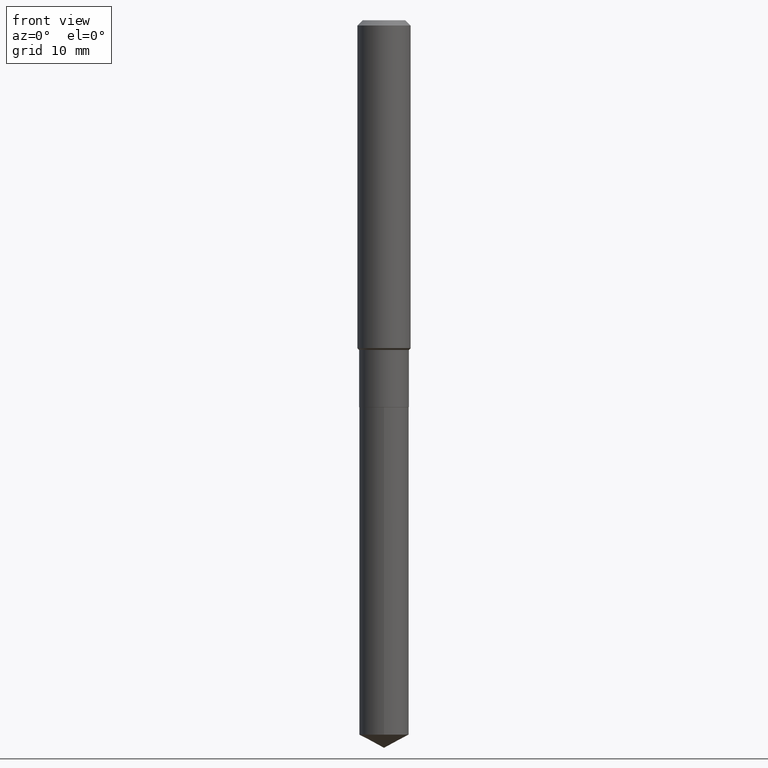
[diagram: clean part render]
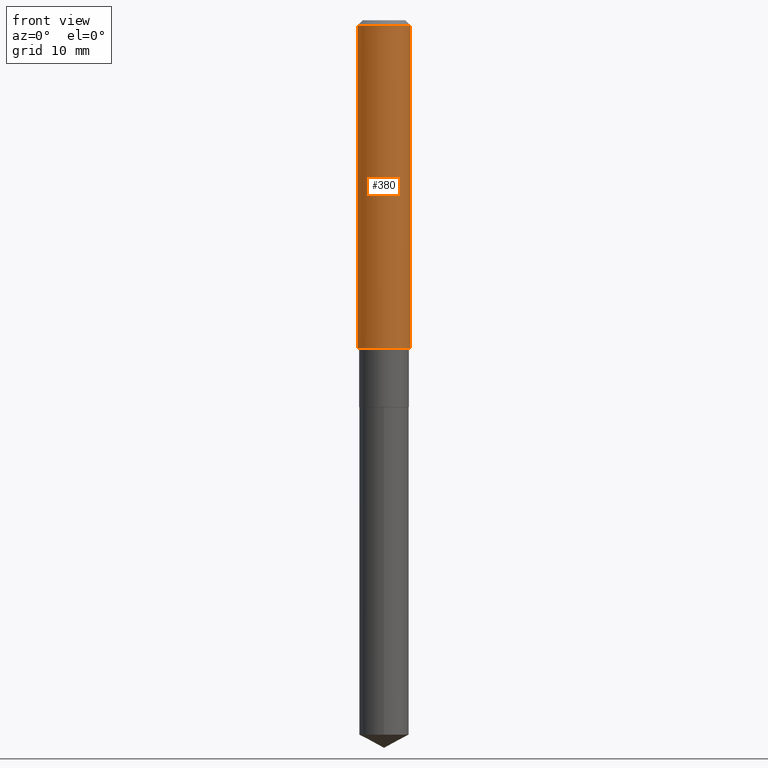
[diagram: same view with one face highlighted and labeled with its STEP entity id]
A machine part, front view. The second image highlights one B-rep face of the part: STEP entity #380.
In plain terms, the highlighted cylindrical surface (edge-blend (fillet) strip) has radius 2.9997 mm, axis along (-0, 0, 1).
Its self-contained STEP definition (entity closure, byte-faithful):
#7 = DIRECTION ( 'NONE',  ( -2.445468806185136597E-29, 3.491481338843145583E-15, 1.000000000000000000 ) ) ;
#9 = ORIENTED_EDGE ( 'NONE', *, *, #259, .T. ) ;
#11 = ORIENTED_EDGE ( 'NONE', *, *, #444, .T. ) ;
#14 = DIRECTION ( 'NONE',  ( 1.000000000000000000, -6.982962677686266711E-15, 4.876176775795936353E-29 ) ) ;
#35 = VECTOR ( 'NONE', #186, 39.37007874015748143 ) ;
#47 = FACE_OUTER_BOUND ( 'NONE', #341, .T. ) ;
#61 = VERTEX_POINT ( 'NONE', #70 ) ;
#70 = CARTESIAN_POINT ( 'NONE',  ( -0.1180999999999999966, -1.742223384720917499E-15, -0.02362000000000014088 ) ) ;
#84 = CARTESIAN_POINT ( 'NONE',  ( 0.1181000000000001632, -5.904967814318468141E-15, -1.455049999999999732 ) ) ;
#110 = EDGE_CURVE ( 'NONE', #61, #125, #170, .T. ) ;
#125 = VERTEX_POINT ( 'NONE', #476 ) ;
#130 = LINE ( 'NONE', #272, #156 ) ;
#156 = VECTOR ( 'NONE', #429, 39.37007874015748143 ) ;
#170 = CIRCLE ( 'NONE', #351, 0.1180999999999999966 ) ;
#186 = DIRECTION ( 'NONE',  ( -2.445468806185136877E-29, 3.491481338843145188E-15, 1.000000000000000000 ) ) ;
#205 = ORIENTED_EDGE ( 'NONE', *, *, #458, .F. ) ;
#232 = CARTESIAN_POINT ( 'NONE',  ( 3.558279386439682894E-29, -5.080279922083718301E-15, -1.455049999999999732 ) ) ;
#256 = LINE ( 'NONE', #453, #35 ) ;
#258 = CARTESIAN_POINT ( 'NONE',  ( -0.1181000000000001632, -4.241128951151038526E-15, -1.455049999999999732 ) ) ;
#259 = EDGE_CURVE ( 'NONE', #284, #125, #256, .T. ) ;
#272 = CARTESIAN_POINT ( 'NONE',  ( -0.1181000000000000799, 8.391509709326788873E-16, -5.809262341591047988E-30 ) ) ;
#284 = VERTEX_POINT ( 'NONE', #84 ) ;
#285 = AXIS2_PLACEMENT_3D ( 'NONE', #317, #427, #14 ) ;
#293 = VERTEX_POINT ( 'NONE', #258 ) ;
#317 = CARTESIAN_POINT ( 'NONE',  ( 0.000000000000000000, 0.000000000000000000, 0.000000000000000000 ) ) ;
#323 = CARTESIAN_POINT ( 'NONE',  ( 5.776197320209327532E-31, -8.246878922347559293E-17, -0.02362000000000014088 ) ) ;
#341 = EDGE_LOOP ( 'NONE', ( #205, #11, #9, #450 ) ) ;
#350 = CYLINDRICAL_SURFACE ( 'NONE', #285, 0.1181000000000000799 ) ;
#351 = AXIS2_PLACEMENT_3D ( 'NONE', #323, #410, #481 ) ;
#380 = ADVANCED_FACE ( 'NONE', ( #47 ), #350, .T. ) ;
#410 = DIRECTION ( 'NONE',  ( -2.445468806185136597E-29, 3.491481338843145583E-15, 1.000000000000000000 ) ) ;
#427 = DIRECTION ( 'NONE',  ( -2.445468806185136597E-29, 3.491481338843145583E-15, 1.000000000000000000 ) ) ;
#429 = DIRECTION ( 'NONE',  ( -2.445468806185136877E-29, 3.491481338843145188E-15, 1.000000000000000000 ) ) ;
#431 = AXIS2_PLACEMENT_3D ( 'NONE', #232, #7, #459 ) ;
#441 = CIRCLE ( 'NONE', #431, 0.1181000000000001632 ) ;
#444 = EDGE_CURVE ( 'NONE', #293, #284, #441, .T. ) ;
#450 = ORIENTED_EDGE ( 'NONE', *, *, #110, .F. ) ;
#453 = CARTESIAN_POINT ( 'NONE',  ( 0.1181000000000000799, -8.246878922347486570E-16, 5.758764772215004644E-30 ) ) ;
#458 = EDGE_CURVE ( 'NONE', #293, #61, #130, .T. ) ;
#459 = DIRECTION ( 'NONE',  ( 1.000000000000000000, -6.982962677686263555E-15, 0.000000000000000000 ) ) ;
#476 = CARTESIAN_POINT ( 'NONE',  ( 0.1180999999999999966, -9.071566814582237199E-16, -0.02362000000000014088 ) ) ;
#481 = DIRECTION ( 'NONE',  ( 1.000000000000000000, -6.982962677686266711E-15, 0.000000000000000000 ) ) ;